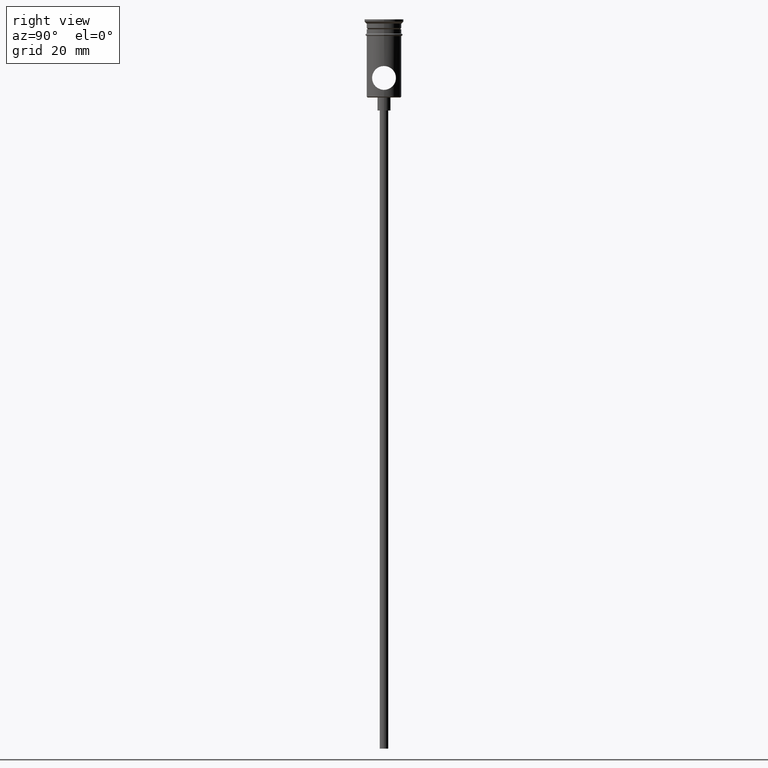
[diagram: clean part render]
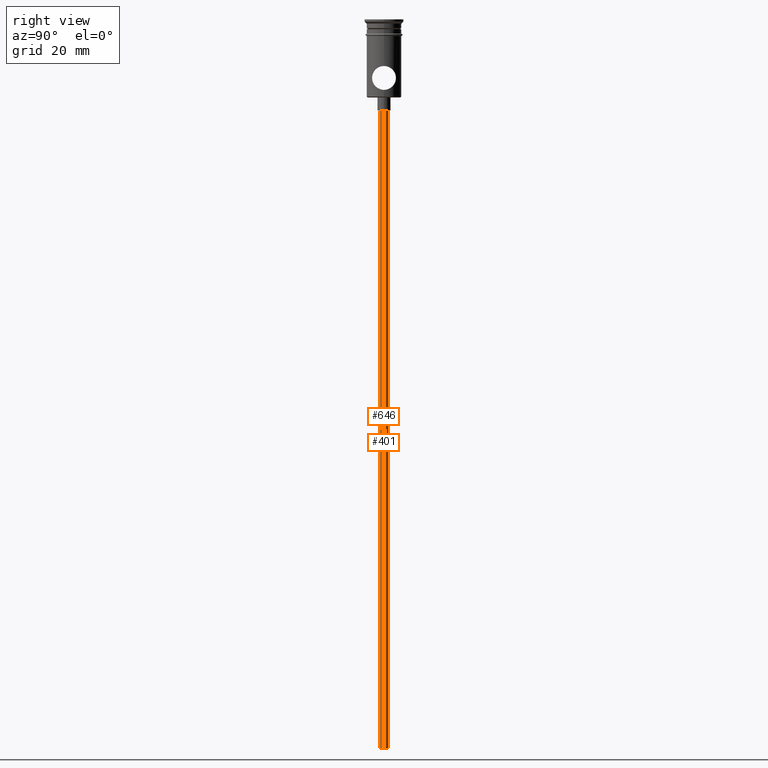
[diagram: same view with one multi-face feature highlighted, each face labeled with its STEP entity id]
A machine part, right view. The highlighted faces form ONE feature: a constant-radius fillet chain: 2 tangent blend faces with common blend radius 1 mm. The faces share edges in the B-rep.
Their STEP definitions:
[1] entity #401 (Cylinder):
#54 = EDGE_CURVE ( 'NONE', #651, #484, #776, .T. ) ;
#92 = VERTEX_POINT ( 'NONE', #437 ) ;
#117 = DIRECTION ( 'NONE',  ( 1.000000000000000000, 0.000000000000000000, 0.000000000000000000 ) ) ;
#130 = VECTOR ( 'NONE', #163, 1000.000000000000000 ) ;
#159 = EDGE_LOOP ( 'NONE', ( #301, #241, #275, #1260 ) ) ;
#163 = DIRECTION ( 'NONE',  ( -0.000000000000000000, -0.000000000000000000, 1.000000000000000000 ) ) ;
#203 = CARTESIAN_POINT ( 'NONE',  ( 0.000000000000000000, 0.000000000000000000, -167.9999999999999716 ) ) ;
#232 = DIRECTION ( 'NONE',  ( -0.000000000000000000, -0.000000000000000000, 1.000000000000000000 ) ) ;
#241 = ORIENTED_EDGE ( 'NONE', *, *, #54, .T. ) ;
#250 = EDGE_CURVE ( 'NONE', #651, #92, #903, .T. ) ;
#275 = ORIENTED_EDGE ( 'NONE', *, *, #1218, .T. ) ;
#301 = ORIENTED_EDGE ( 'NONE', *, *, #250, .F. ) ;
#313 = CIRCLE ( 'NONE', #746, 0.9999999999999997780 ) ;
#329 = DIRECTION ( 'NONE',  ( 0.000000000000000000, 0.000000000000000000, -1.000000000000000000 ) ) ;
#342 = CYLINDRICAL_SURFACE ( 'NONE', #453, 0.9999999999999997780 ) ;
#401 = ADVANCED_FACE ( 'NONE', ( #1095 ), #342, .T. ) ;
#437 = CARTESIAN_POINT ( 'NONE',  ( 0.9999999999999997780, 0.000000000000000000, -167.9999999999999716 ) ) ;
#453 = AXIS2_PLACEMENT_3D ( 'NONE', #203, #232, #117 ) ;
#484 = VERTEX_POINT ( 'NONE', #549 ) ;
#513 = CARTESIAN_POINT ( 'NONE',  ( 0.000000000000000000, 0.000000000000000000, -167.9999999999999716 ) ) ;
#549 = CARTESIAN_POINT ( 'NONE',  ( -0.9999999999999997780, 1.224646799147352961E-16, -20.99999999999999645 ) ) ;
#651 = VERTEX_POINT ( 'NONE', #1124 ) ;
#701 = VECTOR ( 'NONE', #1405, 1000.000000000000000 ) ;
#746 = AXIS2_PLACEMENT_3D ( 'NONE', #990, #329, #763 ) ;
#762 = CARTESIAN_POINT ( 'NONE',  ( -0.9999999999999997780, 1.224646799147352961E-16, -167.9999999999999716 ) ) ;
#763 = DIRECTION ( 'NONE',  ( -1.000000000000000000, 0.000000000000000000, 0.000000000000000000 ) ) ;
#770 = CARTESIAN_POINT ( 'NONE',  ( 0.9999999999999997780, 0.000000000000000000, -20.99999999999999645 ) ) ;
#776 = LINE ( 'NONE', #762, #701 ) ;
#903 = CIRCLE ( 'NONE', #1180, 0.9999999999999997780 ) ;
#917 = LINE ( 'NONE', #1354, #130 ) ;
#945 = DIRECTION ( 'NONE',  ( 0.000000000000000000, 0.000000000000000000, -1.000000000000000000 ) ) ;
#990 = CARTESIAN_POINT ( 'NONE',  ( 0.000000000000000000, 0.000000000000000000, -20.99999999999999645 ) ) ;
#1095 = FACE_OUTER_BOUND ( 'NONE', #159, .T. ) ;
#1124 = CARTESIAN_POINT ( 'NONE',  ( -0.9999999999999997780, 1.224646799147352961E-16, -167.9999999999999716 ) ) ;
#1157 = DIRECTION ( 'NONE',  ( -1.000000000000000000, 0.000000000000000000, 0.000000000000000000 ) ) ;
#1180 = AXIS2_PLACEMENT_3D ( 'NONE', #513, #945, #1157 ) ;
#1218 = EDGE_CURVE ( 'NONE', #484, #1248, #313, .T. ) ;
#1248 = VERTEX_POINT ( 'NONE', #770 ) ;
#1260 = ORIENTED_EDGE ( 'NONE', *, *, #1390, .F. ) ;
#1354 = CARTESIAN_POINT ( 'NONE',  ( 0.9999999999999997780, 0.000000000000000000, -167.9999999999999716 ) ) ;
#1390 = EDGE_CURVE ( 'NONE', #92, #1248, #917, .T. ) ;
#1405 = DIRECTION ( 'NONE',  ( -0.000000000000000000, -0.000000000000000000, 1.000000000000000000 ) ) ;
[2] entity #646 (Cylinder):
#42 = ORIENTED_EDGE ( 'NONE', *, *, #54, .F. ) ;
#47 = DIRECTION ( 'NONE',  ( -1.000000000000000000, 0.000000000000000000, 0.000000000000000000 ) ) ;
#54 = EDGE_CURVE ( 'NONE', #651, #484, #776, .T. ) ;
#92 = VERTEX_POINT ( 'NONE', #437 ) ;
#130 = VECTOR ( 'NONE', #163, 1000.000000000000000 ) ;
#156 = AXIS2_PLACEMENT_3D ( 'NONE', #535, #1310, #1204 ) ;
#163 = DIRECTION ( 'NONE',  ( -0.000000000000000000, -0.000000000000000000, 1.000000000000000000 ) ) ;
#366 = CARTESIAN_POINT ( 'NONE',  ( 0.000000000000000000, 0.000000000000000000, -167.9999999999999716 ) ) ;
#387 = EDGE_CURVE ( 'NONE', #1248, #484, #1271, .T. ) ;
#437 = CARTESIAN_POINT ( 'NONE',  ( 0.9999999999999997780, 0.000000000000000000, -167.9999999999999716 ) ) ;
#440 = EDGE_LOOP ( 'NONE', ( #42, #1272, #1313, #579 ) ) ;
#455 = FACE_OUTER_BOUND ( 'NONE', #440, .T. ) ;
#467 = CYLINDRICAL_SURFACE ( 'NONE', #1174, 0.9999999999999997780 ) ;
#484 = VERTEX_POINT ( 'NONE', #549 ) ;
#535 = CARTESIAN_POINT ( 'NONE',  ( 0.000000000000000000, 0.000000000000000000, -20.99999999999999645 ) ) ;
#549 = CARTESIAN_POINT ( 'NONE',  ( -0.9999999999999997780, 1.224646799147352961E-16, -20.99999999999999645 ) ) ;
#579 = ORIENTED_EDGE ( 'NONE', *, *, #387, .T. ) ;
#634 = CIRCLE ( 'NONE', #811, 0.9999999999999997780 ) ;
#646 = ADVANCED_FACE ( 'NONE', ( #455 ), #467, .T. ) ;
#651 = VERTEX_POINT ( 'NONE', #1124 ) ;
#701 = VECTOR ( 'NONE', #1405, 1000.000000000000000 ) ;
#762 = CARTESIAN_POINT ( 'NONE',  ( -0.9999999999999997780, 1.224646799147352961E-16, -167.9999999999999716 ) ) ;
#770 = CARTESIAN_POINT ( 'NONE',  ( 0.9999999999999997780, 0.000000000000000000, -20.99999999999999645 ) ) ;
#776 = LINE ( 'NONE', #762, #701 ) ;
#781 = DIRECTION ( 'NONE',  ( 1.000000000000000000, 0.000000000000000000, 0.000000000000000000 ) ) ;
#811 = AXIS2_PLACEMENT_3D ( 'NONE', #1021, #1147, #47 ) ;
#917 = LINE ( 'NONE', #1354, #130 ) ;
#982 = EDGE_CURVE ( 'NONE', #92, #651, #634, .T. ) ;
#1021 = CARTESIAN_POINT ( 'NONE',  ( 0.000000000000000000, 0.000000000000000000, -167.9999999999999716 ) ) ;
#1124 = CARTESIAN_POINT ( 'NONE',  ( -0.9999999999999997780, 1.224646799147352961E-16, -167.9999999999999716 ) ) ;
#1147 = DIRECTION ( 'NONE',  ( 0.000000000000000000, 0.000000000000000000, -1.000000000000000000 ) ) ;
#1174 = AXIS2_PLACEMENT_3D ( 'NONE', #366, #1324, #781 ) ;
#1204 = DIRECTION ( 'NONE',  ( -1.000000000000000000, 0.000000000000000000, 0.000000000000000000 ) ) ;
#1248 = VERTEX_POINT ( 'NONE', #770 ) ;
#1271 = CIRCLE ( 'NONE', #156, 0.9999999999999997780 ) ;
#1272 = ORIENTED_EDGE ( 'NONE', *, *, #982, .F. ) ;
#1310 = DIRECTION ( 'NONE',  ( 0.000000000000000000, 0.000000000000000000, -1.000000000000000000 ) ) ;
#1313 = ORIENTED_EDGE ( 'NONE', *, *, #1390, .T. ) ;
#1324 = DIRECTION ( 'NONE',  ( -0.000000000000000000, -0.000000000000000000, 1.000000000000000000 ) ) ;
#1354 = CARTESIAN_POINT ( 'NONE',  ( 0.9999999999999997780, 0.000000000000000000, -167.9999999999999716 ) ) ;
#1390 = EDGE_CURVE ( 'NONE', #92, #1248, #917, .T. ) ;
#1405 = DIRECTION ( 'NONE',  ( -0.000000000000000000, -0.000000000000000000, 1.000000000000000000 ) ) ;